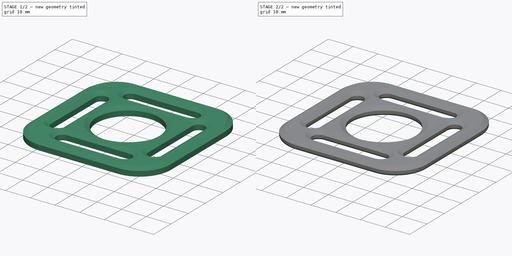
[diagram: build sequence overview — one tinted view per stage of 2, left to right]
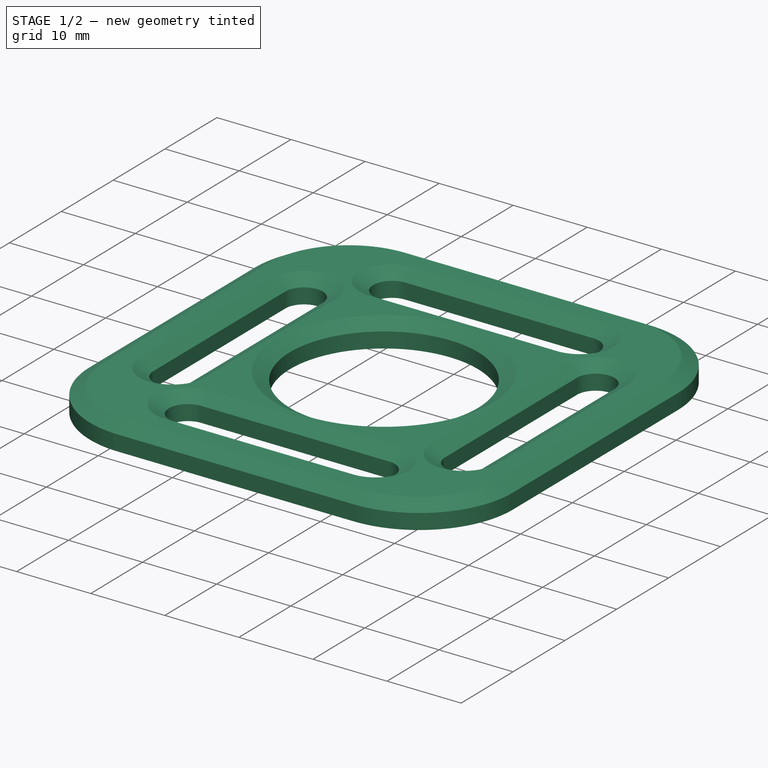
[diagram: stage 1 of 2 — iso view after this stage's code; geometry added in this stage tinted green]
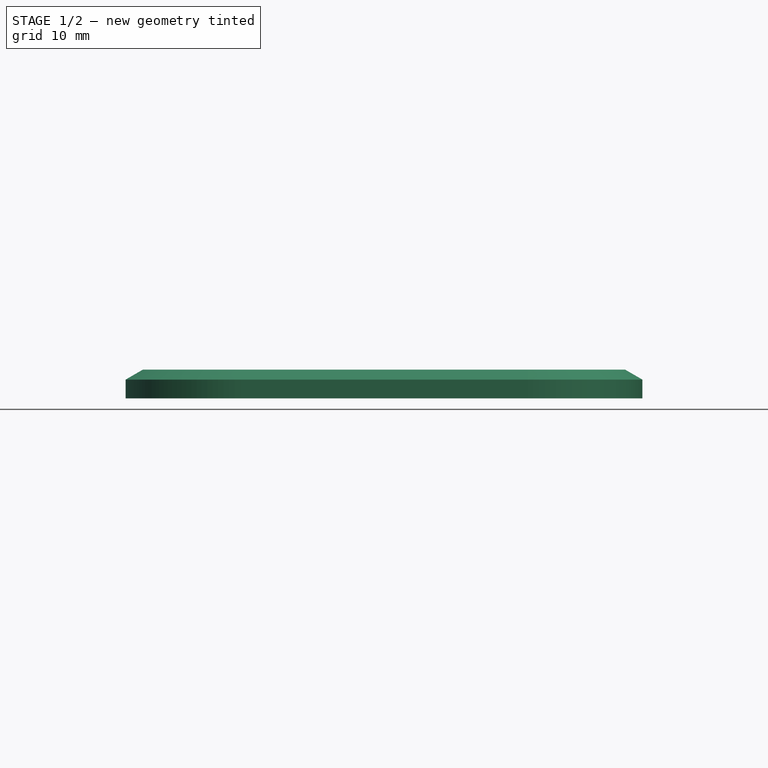
[diagram: stage 1 of 2 — front view after this stage's code; geometry added in this stage tinted green]
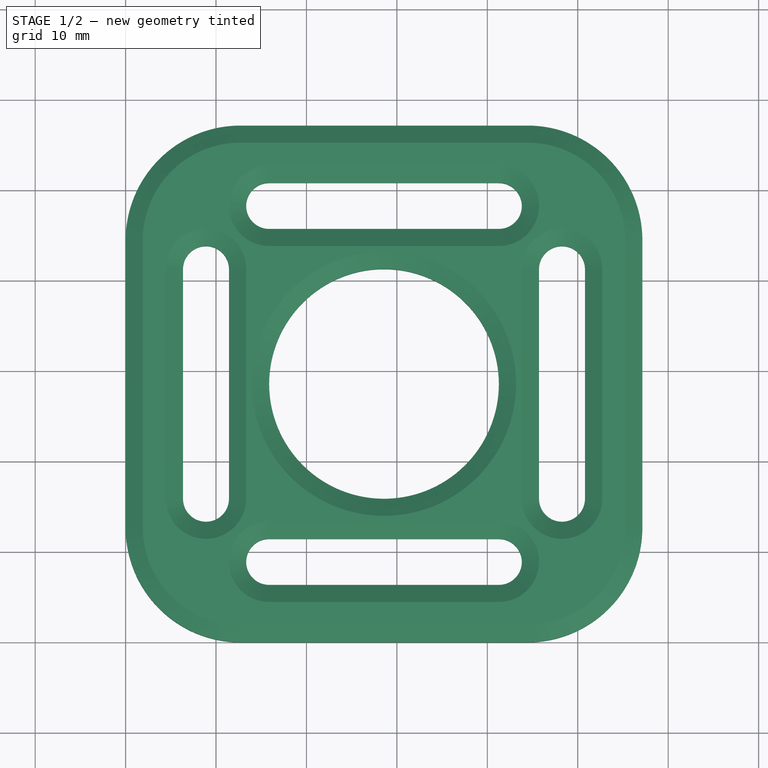
[diagram: stage 1 of 2 — top view after this stage's code; geometry added in this stage tinted green]
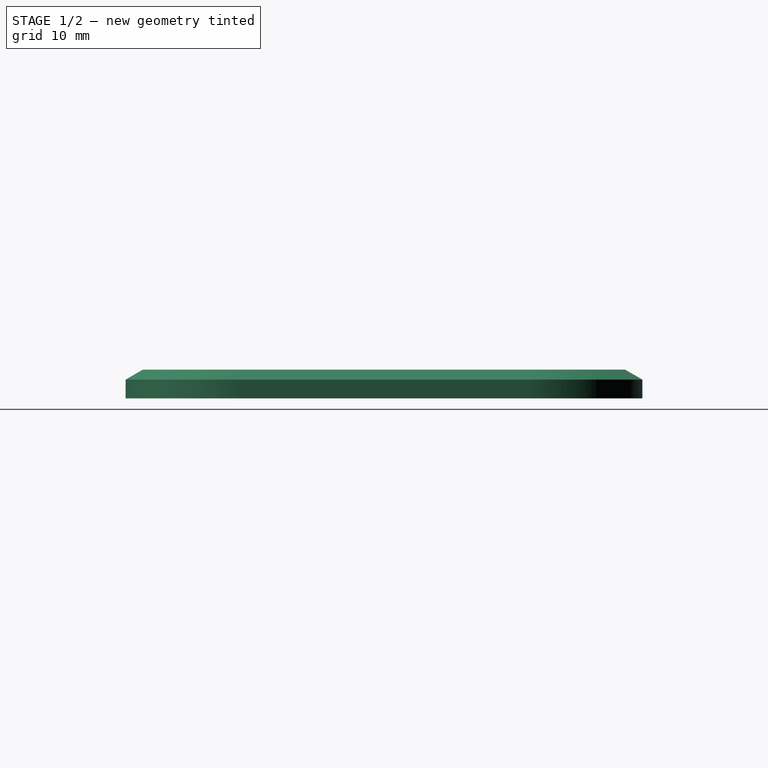
[diagram: stage 1 of 2 — right view after this stage's code; geometry added in this stage tinted green]
FCSTD DOCUMENT  (FreeCAD 0.20R29177 (Git))
Label: cross_strap
License: All rights reserved
LicenseURL: http://en.wikipedia.org/wiki/All_rights_reserved
objects: Sketcher::SketchObject×1, PartDesign::Pad×1, PartDesign::Chamfer×1, PartDesign::Fillet×1, PartDesign::Body×1
note: 8 computed .brp shape members not serialized (recipe doc carries the construction recipe); baked Part::Feature solids carry a one-line shape summary decoded from their .brp

FEATURE [Sketcher::SketchObject] Sketch
  FullyConstrained = true
  MapMode = 5
  Support = -> [XY_Plane]
  sketch-geometry (39):
    g0: LineSegment StartX=12.7 StartY=0 StartZ=0 EndX=44.45 EndY=0 EndZ=0
    g1: LineSegment StartX=57.15 StartY=12.7 StartZ=0 EndX=57.15 EndY=44.45 EndZ=0
    g2: LineSegment StartX=44.45 StartY=57.15 StartZ=0 EndX=12.7 EndY=57.15 EndZ=0
    g3: LineSegment StartX=0 StartY=44.45 StartZ=0 EndX=0 EndY=12.7 EndZ=0
    g4: ArcOfCircle CenterX=15.875 CenterY=48.26 CenterZ=0 NormalX=0 NormalY=0 NormalZ=1 AngleXU=0 Radius=2.54 StartAngle=1.5708 EndAngle=4.71239
    g5: ArcOfCircle CenterX=41.275 CenterY=48.26 CenterZ=0 NormalX=0 NormalY=0 NormalZ=1 AngleXU=0 Radius=2.54 StartAngle=4.71239 EndAngle=7.85398
    g6: LineSegment StartX=15.875 StartY=45.72 StartZ=0 EndX=41.275 EndY=45.72 EndZ=0
    g7: LineSegment StartX=41.275 StartY=50.8 StartZ=0 EndX=15.875 EndY=50.8 EndZ=0
    g8: ArcOfCircle CenterX=8.89 CenterY=41.275 CenterZ=0 NormalX=0 NormalY=0 NormalZ=1 AngleXU=0 Radius=2.54 StartAngle=-9e-16 EndAngle=3.14159
    g9: ArcOfCircle CenterX=8.89 CenterY=15.875 CenterZ=0 NormalX=0 NormalY=0 NormalZ=1 AngleXU=0 Radius=2.54 StartAngle=3.14159 EndAngle=6.28319
    g10: LineSegment StartX=6.35 StartY=41.275 StartZ=0 EndX=6.35 EndY=15.875 EndZ=0
    g11: LineSegment StartX=11.43 StartY=15.875 StartZ=0 EndX=11.43 EndY=41.275 EndZ=0
    g12: ArcOfCircle CenterX=15.875 CenterY=8.89 CenterZ=0 NormalX=0 NormalY=0 NormalZ=1 AngleXU=0 Radius=2.54 StartAngle=1.5708 EndAngle=4.71239
    g13: ArcOfCircle CenterX=41.275 CenterY=8.89 CenterZ=0 NormalX=0 NormalY=0 NormalZ=1 AngleXU=0 Radius=2.54 StartAngle=4.71239 EndAngle=7.85398
    g14: LineSegment StartX=15.875 StartY=6.35 StartZ=0 EndX=41.275 EndY=6.35 EndZ=0
    g15: LineSegment StartX=41.275 StartY=11.43 StartZ=0 EndX=15.875 EndY=11.43 EndZ=0
    g16: ArcOfCircle CenterX=48.26 CenterY=41.275 CenterZ=0 NormalX=0 NormalY=0 NormalZ=1 AngleXU=0 Radius=2.54 StartAngle=9e-16 EndAngle=3.14159
    g17: ArcOfCircle CenterX=48.26 CenterY=15.875 CenterZ=0 NormalX=0 NormalY=0 NormalZ=1 AngleXU=0 Radius=2.54 StartAngle=3.14159 EndAngle=6.28319
    g18: LineSegment StartX=45.72 StartY=41.275 StartZ=0 EndX=45.72 EndY=15.875 EndZ=0
    g19: LineSegment StartX=50.8 StartY=15.875 StartZ=0 EndX=50.8 EndY=41.275 EndZ=0
    g20: LineSegment StartX=8.89 StartY=41.275 StartZ=0 EndX=15.875 EndY=48.26 EndZ=0
    g21: LineSegment StartX=8.89 StartY=15.875 StartZ=0 EndX=15.875 EndY=8.89 EndZ=0
    g22: LineSegment StartX=41.275 StartY=8.89 StartZ=0 EndX=48.26 EndY=15.875 EndZ=0
    g23: LineSegment StartX=0 StartY=0 StartZ=0 EndX=15.875 EndY=8.89 EndZ=0
    g24: LineSegment StartX=0 StartY=0 StartZ=0 EndX=8.89 EndY=15.875 EndZ=0
    g25: LineSegment StartX=50.8 StartY=41.275 StartZ=0 EndX=57.15 EndY=41.275 EndZ=0
    g26: LineSegment StartX=6.35 StartY=41.275 StartZ=0 EndX=0 EndY=41.275 EndZ=0
    g27: ArcOfCircle CenterX=44.45 CenterY=44.45 CenterZ=0 NormalX=0 NormalY=0 NormalZ=1 AngleXU=0 Radius=12.7 StartAngle=2e-16 EndAngle=1.5708
    g28: GeomPoint X=57.15 Y=57.15 Z=0
    g29: ArcOfCircle CenterX=12.7 CenterY=44.45 CenterZ=0 NormalX=0 NormalY=0 NormalZ=1 AngleXU=0 Radius=12.7 StartAngle=1.5708 EndAngle=3.14159
    g30: GeomPoint X=0 Y=57.15 Z=0
    g31: ArcOfCircle CenterX=44.45 CenterY=12.7 CenterZ=0 NormalX=0 NormalY=0 NormalZ=1 AngleXU=0 Radius=12.7 StartAngle=4.71239 EndAngle=6.28319
    g32: GeomPoint X=57.15 Y=0 Z=0
    g33: ArcOfCircle CenterX=12.7 CenterY=12.7 CenterZ=0 NormalX=0 NormalY=0 NormalZ=1 AngleXU=0 Radius=12.7 StartAngle=3.14159 EndAngle=4.71239
    g34: GeomPoint X=0 Y=0 Z=0
    g35: Circle CenterX=28.575 CenterY=28.575 CenterZ=0 NormalX=0 NormalY=0 NormalZ=1 AngleXU=0 Radius=12.7
    g36: LineSegment StartX=15.875 StartY=8.89 StartZ=0 EndX=28.575 EndY=28.575 EndZ=0
    g37: LineSegment StartX=28.575 StartY=28.575 StartZ=0 EndX=41.275 EndY=8.89 EndZ=0
    g38: LineSegment StartX=48.26 StartY=15.875 StartZ=0 EndX=28.575 EndY=28.575 EndZ=0
  constraints (92):
    c: Horizontal(g0)
    c: Horizontal(g2)
    c: Vertical(g1)
    c: Vertical(g3)
    c: Coincident(g34,g-1)
    c: DistanceX(g30,g28) = 57.15
    c: Tangent(g4,g6) = -1.5708
    c: Tangent(g6,g5) = -1.5708
    c: Tangent(g5,g7) = -1.5708
    c: Tangent(g7,g4) = -1.5708
    c: Equal(g4,g5)
    c: Horizontal(g6)
    c: DistanceX(g7,g7) = 25.4
    c: Radius(g5) = 2.54
    c: Tangent(g8,g10) = -1.5708
    c: Tangent(g10,g9) = -1.5708
    c: Tangent(g9,g11) = -1.5708
    c: Tangent(g11,g8) = -1.5708
    c: Equal(g8,g9)
    c: Vertical(g10)
    c: Tangent(g12,g14) = -1.5708
    c: Tangent(g14,g13) = -1.5708
    c: Tangent(g13,g15) = -1.5708
    c: Tangent(g15,g12) = -1.5708
    c: Equal(g12,g13)
    c: Horizontal(g14)
    c: Tangent(g16,g18) = -1.5708
    c: Tangent(g18,g17) = -1.5708
    c: Tangent(g17,g19) = -1.5708
    c: Tangent(g19,g16) = -1.5708
    c: Equal(g16,g17)
    c: Vertical(g18)
    c: Equal(g6,g11)
    c: Equal(g11,g15)
    c: Equal(g15,g18)
    c: Equal(g4,g8)
    c: Equal(g8,g12)
    c: Equal(g12,g17)
    c: Coincident(g20,g8)
    c: Coincident(g20,g4)
    c: Coincident(g21,g9)
    c: Coincident(g21,g12)
    c: Coincident(g22,g13)
    c: Coincident(g22,g17)
    c: Equal(g20,g21)
    c: Equal(g21,g22)
    c: Angle(g20) = 0.785398
    c: Angle(g21) = -0.785398
    c: Perpendicular(g21,g22)
    c: Coincident(g23,g34)
    c: Coincident(g23,g12)
    c: Coincident(g24,g34)
    c: Coincident(g24,g9)
    c: Equal(g24,g23)
    c: Coincident(g25,g16)
    c: PointOnObject(g25,g1)
    c: Horizontal(g25)
    c: DistanceX(g25,g25) = 6.35
    c: Coincident(g26,g8)
    c: PointOnObject(g26,g3)
    c: Horizontal(g26)
    c: Equal(g26,g25)
    c: PointOnObject(g28,g1)
    c: PointOnObject(g28,g2)
    c: Tangent(g1,g27) = -1.5708
    c: Tangent(g2,g27) = -1.5708
    c: PointOnObject(g30,g2)
    c: PointOnObject(g30,g3)
    c: Tangent(g2,g29) = -1.5708
    c: Tangent(g3,g29) = -1.5708
    c: PointOnObject(g32,g0)
    c: PointOnObject(g32,g1)
    c: Tangent(g0,g31) = -1.5708
    c: Tangent(g1,g31) = -1.5708
    c: PointOnObject(g34,g0)
    c: PointOnObject(g34,g3)
    c: Tangent(g0,g33) = -1.5708
    c: Tangent(g3,g33) = -1.5708
    c: Equal(g31,g27)
    c: Equal(g27,g29)
    c: Equal(g29,g33)
    c: Equal(g2,g1)
    c: Radius(g27) = 12.7
    c: Coincident(g36,g12)
    c: Coincident(g36,g35)
    c: Coincident(g37,g35)
    c: Coincident(g37,g13)
    c: Coincident(g38,g17)
    c: Coincident(g38,g35)
    c: Equal(g36,g37)
    c: Equal(g37,g38)
    c: Radius(g35) = 12.7
FEATURE [PartDesign::Pad] Pad
  Direction = (0,0,1)
  Length = 3.175
  Length2 = 9.906
  Profile = -> Sketch
  ReferenceAxis = -> Sketch [N_Axis]
  Type = 0
FEATURE [PartDesign::Chamfer] Chamfer
  Angle = 30
  Base = -> Pad [Face27]
  BaseFeature = -> Pad
  ChamferType = 2
  FlipDirection = false
  Size = 1.905
  Size2 = 1
  SupportTransform = false
  UseAllEdges = false
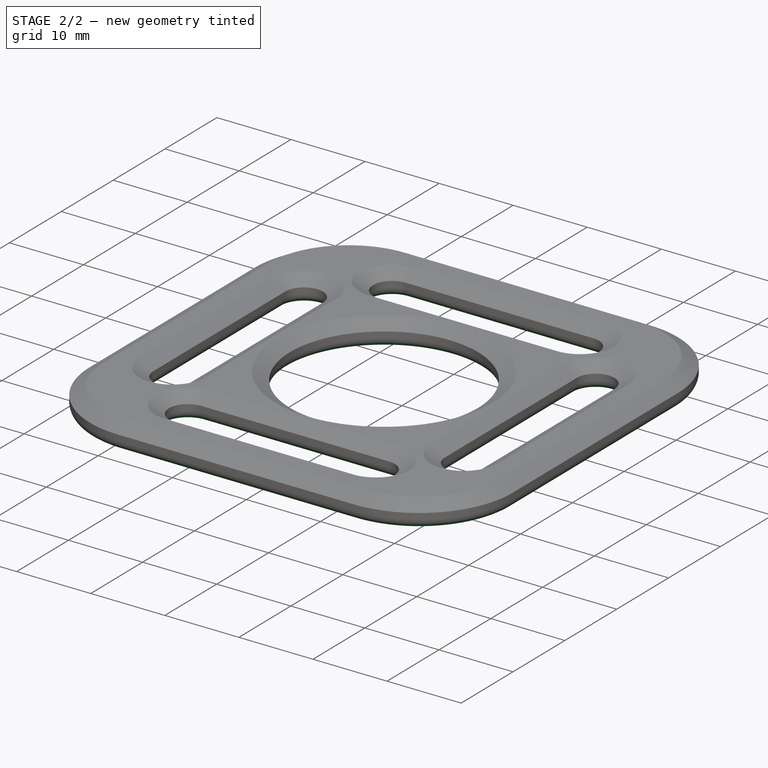
[diagram: stage 2 of 2 — iso view after this stage's code; geometry added in this stage tinted green]
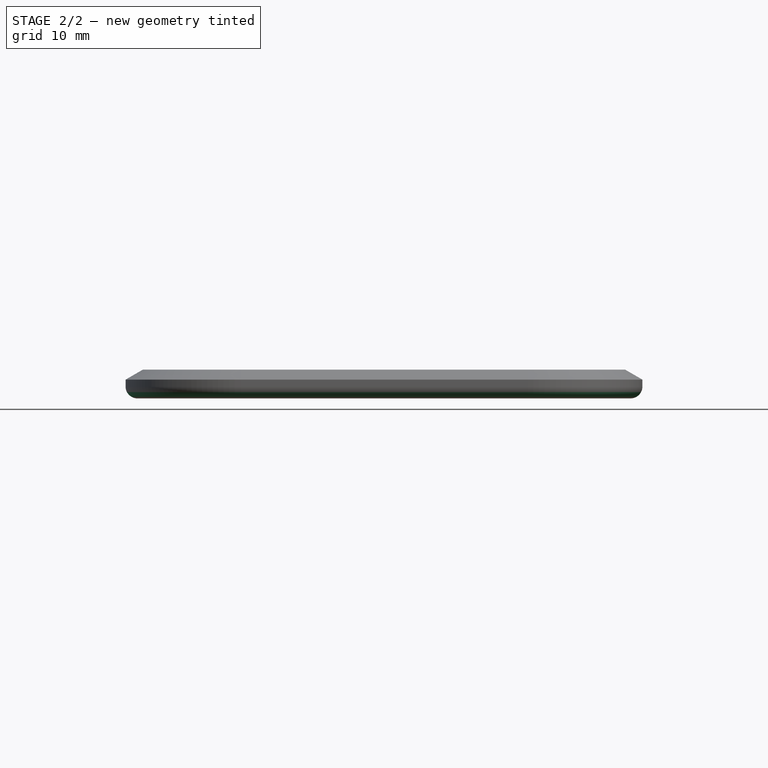
[diagram: stage 2 of 2 — front view after this stage's code; geometry added in this stage tinted green]
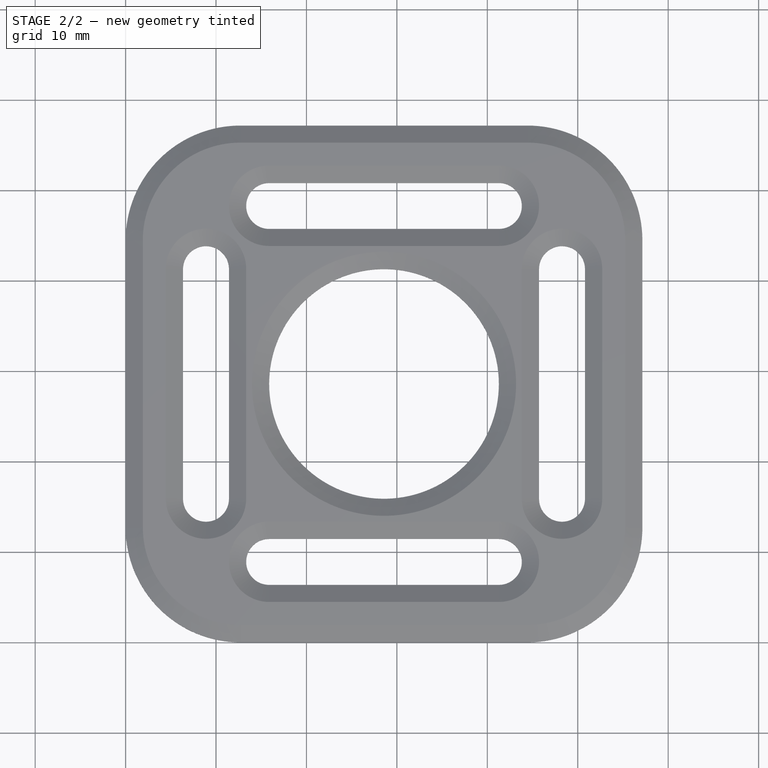
[diagram: stage 2 of 2 — top view after this stage's code; geometry added in this stage tinted green]
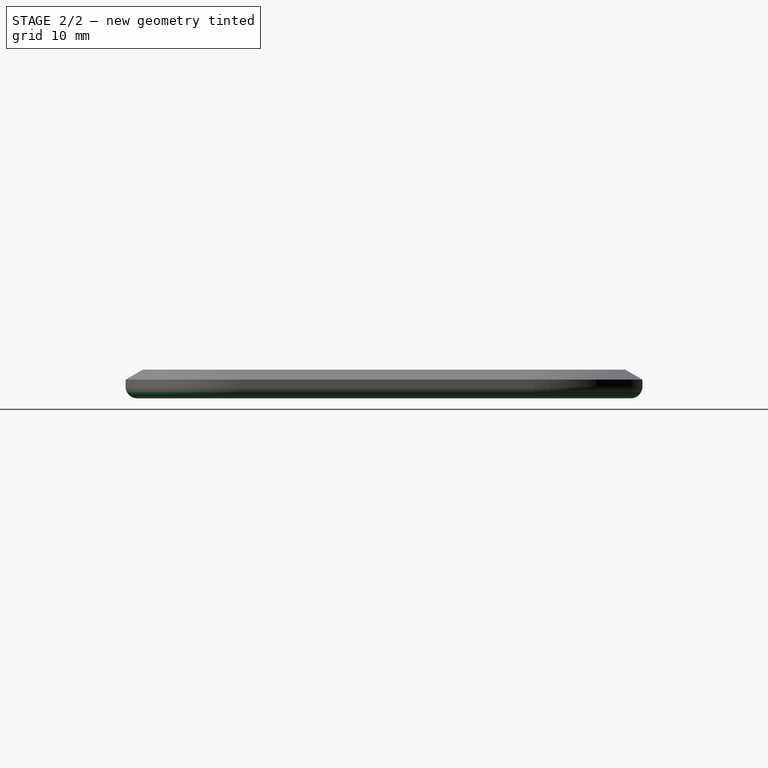
[diagram: stage 2 of 2 — right view after this stage's code; geometry added in this stage tinted green]
FEATURE [PartDesign::Fillet] Fillet
  Base = -> Chamfer [Face4]
  BaseFeature = -> Chamfer
  Radius = 1.3048
  SupportTransform = false
  UseAllEdges = false
FEATURE [PartDesign::Body] Body
  Group = -> [Sketch,Pad,Chamfer,Fillet]
  Origin = -> Origin
  Tip = -> Fillet
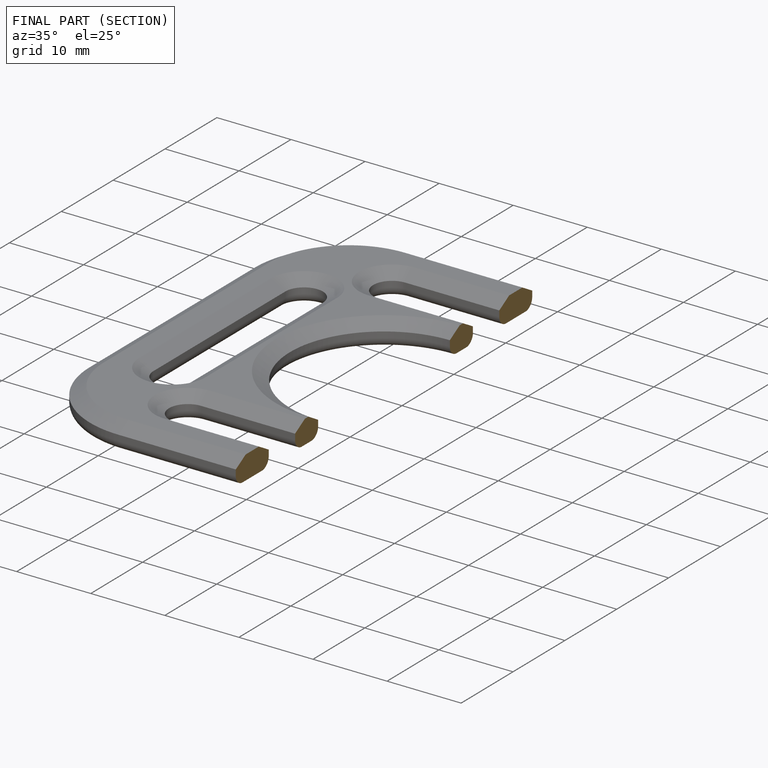
[diagram: finished part — half-section view (interior)]
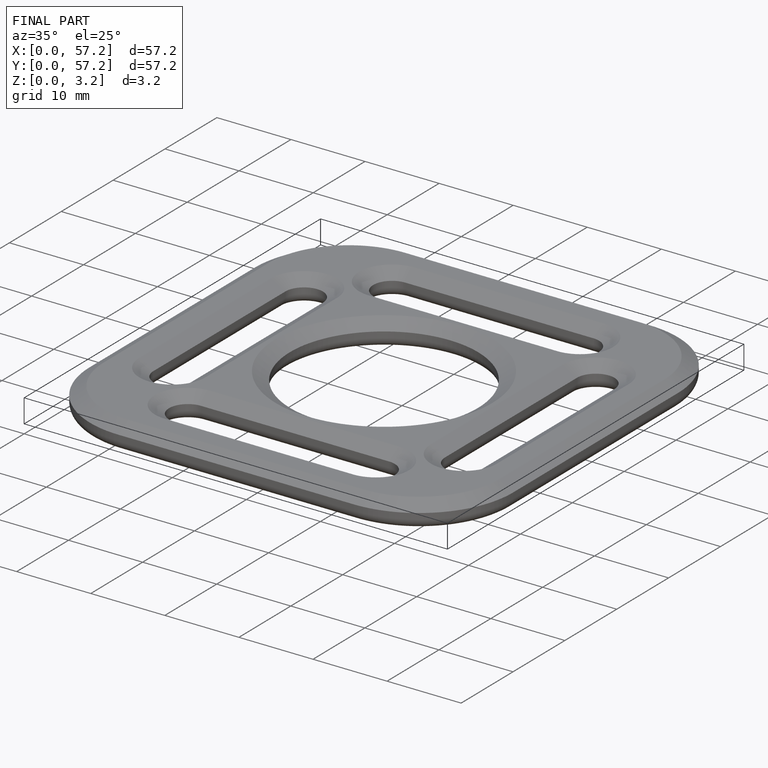
[diagram: finished part — iso view with bounding-box wireframe]
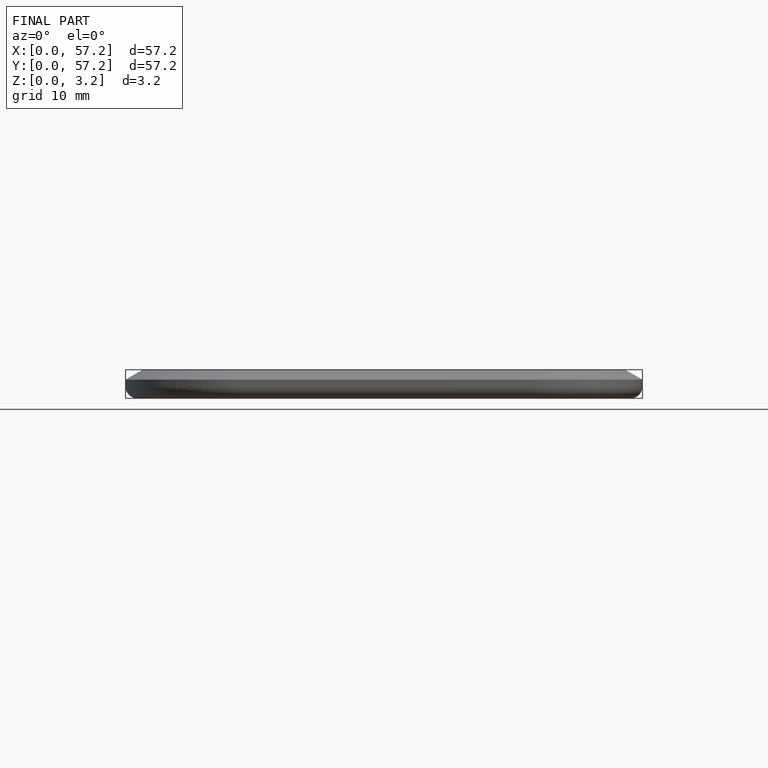
[diagram: finished part — front view with bounding-box wireframe]
